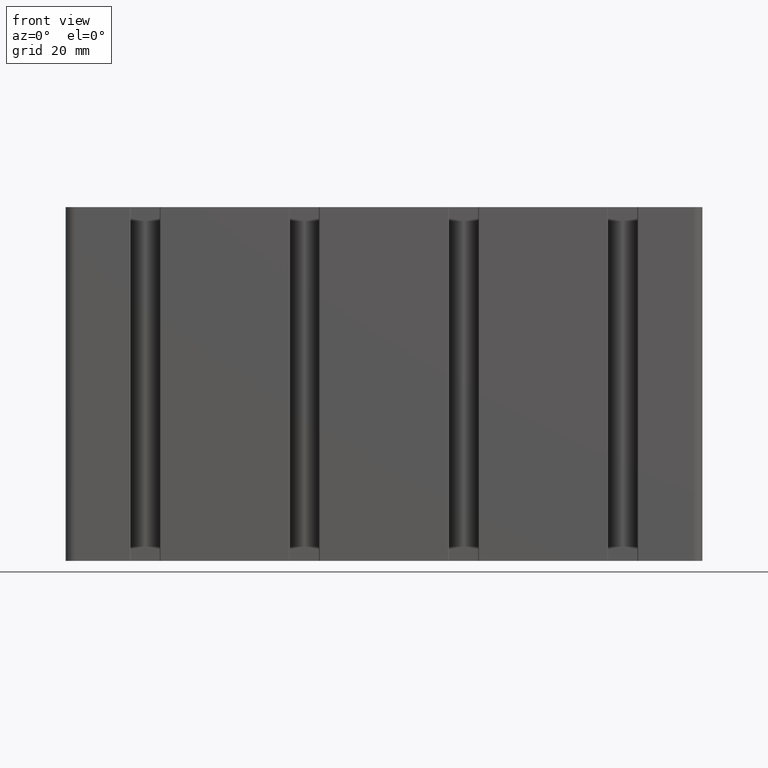
[diagram: clean part render]
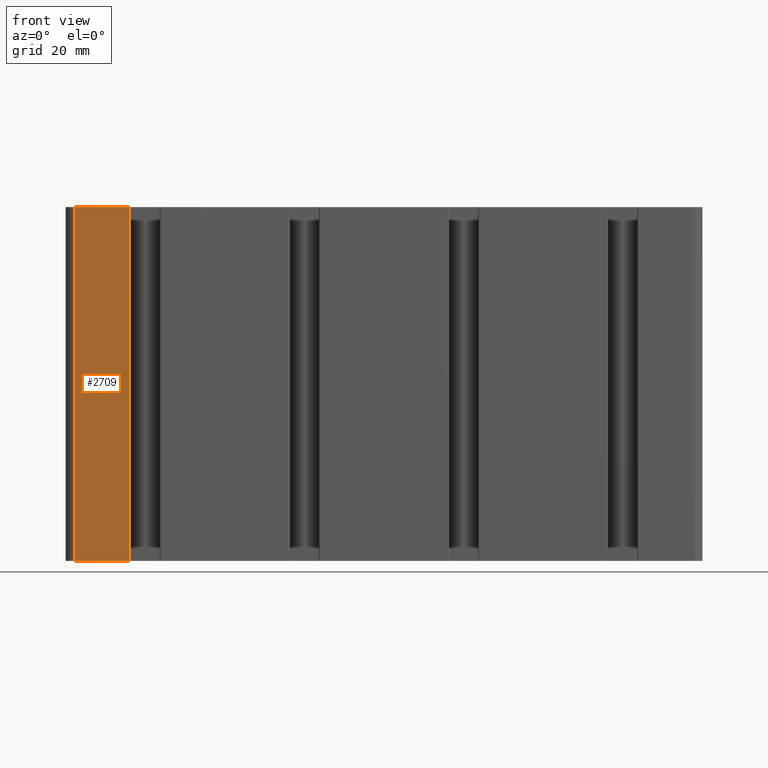
[diagram: same view with one face highlighted and labeled with its STEP entity id]
A machine part, front view. The second image highlights one B-rep face of the part: STEP entity #2709.
In plain terms, the highlighted planar face has unit normal (0, -1, 0).
Its self-contained STEP definition (entity closure, byte-faithful):
#313=FACE_OUTER_BOUND('',#449,.T.);
#449=EDGE_LOOP('',(#2199,#2200,#2201,#2202));
#502=LINE('',#3893,#788);
#731=LINE('',#4532,#1017);
#732=LINE('',#4534,#1018);
#733=LINE('',#4535,#1019);
#788=VECTOR('',#3096,100.);
#1017=VECTOR('',#3713,15.5462803533563);
#1018=VECTOR('',#3714,100.);
#1019=VECTOR('',#3715,15.5462803533563);
#1075=VERTEX_POINT('',#3889);
#1077=VERTEX_POINT('',#3892);
#1293=VERTEX_POINT('',#4531);
#1294=VERTEX_POINT('',#4533);
#1361=EDGE_CURVE('',#1075,#1077,#502,.T.);
#1679=EDGE_CURVE('',#1075,#1293,#731,.T.);
#1680=EDGE_CURVE('',#1294,#1293,#732,.T.);
#1681=EDGE_CURVE('',#1077,#1294,#733,.T.);
#2199=ORIENTED_EDGE('',*,*,#1361,.F.);
#2200=ORIENTED_EDGE('',*,*,#1679,.T.);
#2201=ORIENTED_EDGE('',*,*,#1680,.F.);
#2202=ORIENTED_EDGE('',*,*,#1681,.F.);
#2577=PLANE('',#2955);
#2709=ADVANCED_FACE('',(#313),#2577,.T.);
#2955=AXIS2_PLACEMENT_3D('',#4530,#3711,#3712);
#3096=DIRECTION('',(0.,0.,-1.));
#3711=DIRECTION('center_axis',(0.,-1.,0.));
#3712=DIRECTION('ref_axis',(1.,0.,0.));
#3713=DIRECTION('',(-1.,0.,0.));
#3714=DIRECTION('',(0.,0.,1.));
#3715=DIRECTION('',(-1.,0.,0.));
#3889=CARTESIAN_POINT('',(-71.9537196466436,-9.2499999999999,100.));
#3892=CARTESIAN_POINT('',(-71.9537196466436,-9.2499999999999,0.));
#3893=CARTESIAN_POINT('',(-71.9537196466439,-9.25,0.));
#4530=CARTESIAN_POINT('Origin',(-87.5,-9.25,0.));
#4531=CARTESIAN_POINT('',(-87.5,-9.25,100.));
#4532=CARTESIAN_POINT('',(-43.75,-9.25,100.));
#4533=CARTESIAN_POINT('',(-87.5,-9.25,0.));
#4534=CARTESIAN_POINT('',(-87.5,-9.25,0.));
#4535=CARTESIAN_POINT('',(-43.75,-9.25,0.));